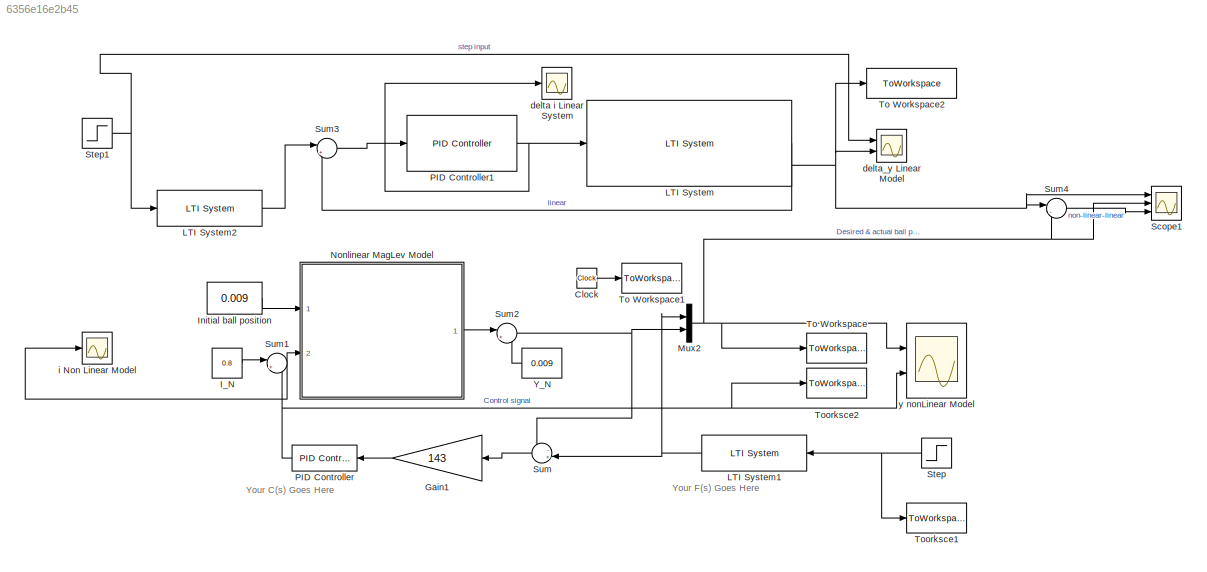
MODEL slx_6356e16e2b45
KIND model
CONFIG AbsTol = auto
CONFIG EnableMultiTasking = off
CONFIG FixedStep = auto
CONFIG MaxStep = auto
CONFIG MinStep = auto
CONFIG RelTol = 1e-3
CONFIG SampleTimeConstraint = Unconstrained
CONFIG Solver = VariableStepAuto
CONFIG SolverName = VariableStepAuto
CONFIG StartTime = 0.0
CONFIG StopTime = 15.0
BLOCK [Scope]  i Non Linear Model
  Floating = off
  NumInputPorts = 1
  Ports = [1]
  ScopeSpecificationString = Simulink.scopes.TimeScopeBlockCfg('CurrentConfiguration', extmgr.ConfigurationSet(extmgr.Configuration('Core','General UI',true),extmgr.Configuration('Core','Source UI',true),extmgr.Configuration('Sources','WiredSimulink',true,'DataLoggingVariableName','ScopeData1'),extmgr.Configuration('Visuals','Time Domain',true,'SerializedDisplays',{struct('MinYLimReal','0.7067','MaxYLimReal','1.02413','YLabel...<+1383ch>
BLOCK [Scope]  y nonLinear Model
  Floating = off
  NumInputPorts = 2
  Ports = [2]
  ScopeSpecificationString = Simulink.scopes.TimeScopeBlockCfg('CurrentConfiguration', extmgr.ConfigurationSet(extmgr.Configuration('Core','General UI',true),extmgr.Configuration('Core','Source UI',true),extmgr.Configuration('Sources','WiredSimulink',true,'DataLoggingSaveFormat','StructureWithTime','DataLoggingMaxPoints','500000','DataLoggingLimitDataPoints',true,'DataLoggingDecimation','1','DataLoggingDecimateData',true),ext...<+2455ch>
BLOCK [Clock] Clock
BLOCK [Gain] Gain1
  Gain = 143
  OutDataTypeStr = Inherit: Inherit via internal rule
  ParamDataTypeStr = Inherit: Inherit via internal rule
  SaturateOnIntegerOverflow = off
BLOCK [Constant] I_N
  Value = 0.8
BLOCK [Constant] Initial ball position
  Value = 0.009
BLOCK [Reference] LTI System  REF=cstblocks/LTI System
  Ports = [1, 1]
  SourceBlock = cstblocks/LTI System
  SourceProductBaseCode = CT
  SourceProductName = Control System Toolbox
  SourceType = LTI Block
BLOCK [Reference] LTI System1  REF=cstblocks/LTI System
  Ports = [1, 1]
  SourceBlock = cstblocks/LTI System
  SourceProductBaseCode = CT
  SourceProductName = Control System Toolbox
  SourceType = LTI Block
BLOCK [Reference] LTI System2  REF=cstblocks/LTI System
  Ports = [1, 1]
  SourceBlock = cstblocks/LTI System
  SourceProductBaseCode = CT
  SourceProductName = Control System Toolbox
  SourceType = LTI Block
BLOCK [Mux] Mux2
  DisplayOption = bar
  Inputs = 2
  Ports = [2, 1]
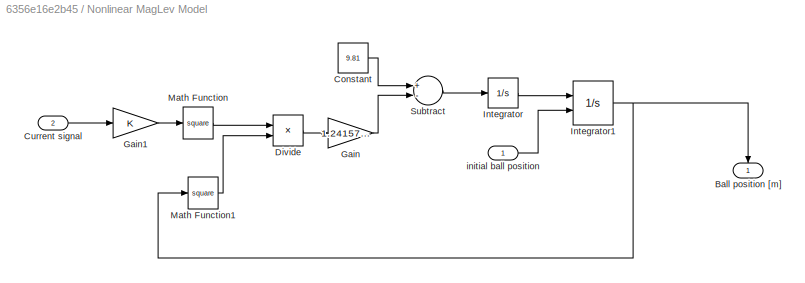
BLOCK [SubSystem] Nonlinear MagLev Model
  Ports = [2, 1]
  RequestExecContextInheritance = off
BLOCK [Outport] Nonlinear MagLev Model/Ball position [m]
  IconDisplay = Port number
BLOCK [Constant] Nonlinear MagLev Model/Constant
  Value = 9.81
BLOCK [Inport] Nonlinear MagLev Model/Current signal
  IconDisplay = Port number
  Port = 2
BLOCK [Product] Nonlinear MagLev Model/Divide
  InputSameDT = off
  Inputs = */
  OutDataTypeStr = Inherit: Inherit via internal rule
  Ports = [2, 1]
  RndMeth = Floor
  SaturateOnIntegerOverflow = off
BLOCK [Gain] Nonlinear MagLev Model/Gain
  Gain = 1.241578125e-3
  OutDataTypeStr = Inherit: Inherit via internal rule
  ParamDataTypeStr = Inherit: Inherit via internal rule
  SaturateOnIntegerOverflow = off
BLOCK [Gain] Nonlinear MagLev Model/Gain1
  OutDataTypeStr = Inherit: Inherit via internal rule
  ParamDataTypeStr = Inherit: Inherit via internal rule
  SaturateOnIntegerOverflow = off
BLOCK [Integrator] Nonlinear MagLev Model/Integrator
  Ports = [1, 1]
BLOCK [Integrator] Nonlinear MagLev Model/Integrator1
  InitialConditionSource = external
  Ports = [2, 1]
BLOCK [Math] Nonlinear MagLev Model/Math Function
  Operator = square
  Ports = [1, 1]
BLOCK [Math] Nonlinear MagLev Model/Math Function1
  Operator = square
  Ports = [1, 1]
BLOCK [Sum] Nonlinear MagLev Model/Subtract
  InputSameDT = off
  Inputs = +-
  OutDataTypeStr = Inherit: Inherit via internal rule
  Ports = [2, 1]
  SaturateOnIntegerOverflow = off
BLOCK [Inport] Nonlinear MagLev Model/initial ball position
  IconDisplay = Port number
BLOCK [Reference] PID Controller  REF=simulink/Continuous/PID Controller
  Ports = [1, 1]
  SourceBlock = simulink/Continuous/PID Controller
  SourceProductBaseCode = SL
  SourceProductName = Simulink
  SourceType = PID 1dof
BLOCK [Reference] PID Controller1  REF=simulink/Continuous/PID Controller
  Ports = [1, 1]
  SourceBlock = simulink/Continuous/PID Controller
  SourceProductBaseCode = SL
  SourceProductName = Simulink
  SourceType = PID 1dof
BLOCK [Scope] Scope1
  Floating = off
  NumInputPorts = 3
  Ports = [3]
  ScopeSpecificationString = Simulink.scopes.TimeScopeBlockCfg('CurrentConfiguration', extmgr.ConfigurationSet(extmgr.Configuration('Core','General UI',true),extmgr.Configuration('Core','Source UI',true),extmgr.Configuration('Sources','WiredSimulink',true,'DataLoggingVariableName','ScopeData2'),extmgr.Configuration('Visuals','Time Domain',true,'SerializedDisplays',{struct('MinYLimReal','-0.00053','MaxYLimReal','0.00247','YLab...<+1652ch>
BLOCK [Step] Step
  After = 0.002
  SampleTime = 0
  Time = 0
BLOCK [Step] Step1
  After = 0.002
  SampleTime = 0
  Time = 0
BLOCK [Sum] Sum
  IconShape = round
  InputSameDT = off
  Inputs = -+|
  OutDataTypeStr = Inherit: Inherit via internal rule
  Ports = [2, 1]
  SaturateOnIntegerOverflow = off
BLOCK [Sum] Sum1
  IconShape = round
  InputSameDT = off
  Inputs = |++
  OutDataTypeStr = Inherit: Inherit via internal rule
  Ports = [2, 1]
  SaturateOnIntegerOverflow = off
BLOCK [Sum] Sum2
  IconShape = round
  InputSameDT = off
  Inputs = |+-
  OutDataTypeStr = Inherit: Inherit via internal rule
  Ports = [2, 1]
  SaturateOnIntegerOverflow = off
BLOCK [Sum] Sum3
  IconShape = round
  InputSameDT = off
  Inputs = |+-
  OutDataTypeStr = Inherit: Inherit via internal rule
  Ports = [2, 1]
  SaturateOnIntegerOverflow = off
BLOCK [Sum] Sum4
  IconShape = round
  InputSameDT = off
  Inputs = |-+
  OutDataTypeStr = Inherit: Inherit via internal rule
  Ports = [2, 1]
  SaturateOnIntegerOverflow = off
BLOCK [ToWorkspace] To Workspace
  MaxDataPoints = inf
  Ports = [1]
  SampleTime = 0.01
  VariableName = y
BLOCK [ToWorkspace] To Workspace1
  MaxDataPoints = inf
  Ports = [1]
  SampleTime = 0.01
  VariableName = time
BLOCK [ToWorkspace] To Workspace2
  FixptAsFi = on
  MaxDataPoints = inf
  Ports = [1]
  SampleTime = -1
  VariableName = prePID
BLOCK [ToWorkspace] Toorksce1
  MaxDataPoints = inf
  Ports = [1]
  SampleTime = 0.01
  VariableName = r
BLOCK [ToWorkspace] Toorksce2
  MaxDataPoints = inf
  Ports = [1]
  SampleTime = 0.01
  VariableName = u
BLOCK [Constant] Y_N
  Value = 0.009
BLOCK [Scope] delta i Linear System
  Floating = off
  NumInputPorts = 1
  Ports = [1]
  ScopeSpecificationString = Simulink.scopes.TimeScopeBlockCfg('CurrentConfiguration', extmgr.ConfigurationSet(extmgr.Configuration('Core','General UI',true),extmgr.Configuration('Core','Source UI',true),extmgr.Configuration('Sources','WiredSimulink',true,'DataLoggingVariableName','ScopeData3'),extmgr.Configuration('Visuals','Time Domain',true,'SerializedDisplays',{struct('MinYLimReal','-0.00065','MaxYLimReal','0.00159','YLab...<+1400ch>
BLOCK [Scope] delta_y Linear Model
  Floating = off
  NumInputPorts = 2
  Ports = [2]
  ScopeSpecificationString = Simulink.scopes.TimeScopeBlockCfg('CurrentConfiguration', extmgr.ConfigurationSet(extmgr.Configuration('Core','General UI',true),extmgr.Configuration('Core','Source UI',true),extmgr.Configuration('Sources','WiredSimulink',true,'DataLoggingVariableName','ScopeData1'),extmgr.Configuration('Visuals','Time Domain',true,'SerializedDisplays',{struct('MinYLimReal','-0.00027','MaxYLimReal','0.00244','YLab...<+1480ch>
ANNOTATION (root): Your C(s) Goes Here
ANNOTATION (root): Your F(s) Goes Here
LINE Clock:1 -> To Workspace1:1
LINE Gain1:1 -> PID Controller:1
LINE I_N:1 -> Sum1:1
LINE Initial ball position:1 -> Nonlinear MagLev Model:1
NET LTI System1:1 -> Mux2:1, Sum:2
LINE LTI System2:1 -> Sum3:1
NET LTI System:1 -> Scope1:1, Sum3:2, Sum4:1, To Workspace2:1, delta_y Linear Model:2
NET Mux2:1 ->  y nonLinear Model:1, Scope1:2, Sum4:2, To Workspace:1
LINE Nonlinear MagLev Model/Constant:1 -> Nonlinear MagLev Model/Subtract:1
LINE Nonlinear MagLev Model/Current signal:1 -> Nonlinear MagLev Model/Gain1:1
LINE Nonlinear MagLev Model/Divide:1 -> Nonlinear MagLev Model/Gain:1
LINE Nonlinear MagLev Model/Gain1:1 -> Nonlinear MagLev Model/Math Function:1
LINE Nonlinear MagLev Model/Gain:1 -> Nonlinear MagLev Model/Subtract:2
NET Nonlinear MagLev Model/Integrator1:1 -> Nonlinear MagLev Model/Ball position [m]:1, Nonlinear MagLev Model/Math Function1:1
LINE Nonlinear MagLev Model/Integrator:1 -> Nonlinear MagLev Model/Integrator1:1
LINE Nonlinear MagLev Model/Math Function1:1 -> Nonlinear MagLev Model/Divide:2
LINE Nonlinear MagLev Model/Math Function:1 -> Nonlinear MagLev Model/Divide:1
LINE Nonlinear MagLev Model/Subtract:1 -> Nonlinear MagLev Model/Integrator:1
LINE Nonlinear MagLev Model/initial ball position:1 -> Nonlinear MagLev Model/Integrator1:2
LINE Nonlinear MagLev Model:1 -> Sum2:1
NET PID Controller1:1 -> LTI System:1, delta i Linear System:1
NET PID Controller:1 ->  y nonLinear Model:2, Sum1:2, Toorksce2:1
NET Step1:1 -> LTI System2:1, delta_y Linear Model:1
NET Step:1 -> LTI System1:1, Toorksce1:1
NET Sum1:1 ->  i Non Linear Model:1, Nonlinear MagLev Model:2
NET Sum2:1 -> Mux2:2, Sum:1
LINE Sum3:1 -> PID Controller1:1
LINE Sum4:1 -> Scope1:3
LINE Sum:1 -> Gain1:1
LINE Y_N:1 -> Sum2:2
note: NET lines group one-source signal fan-out (src -> all destinations, sorted); 1:1 wires keep LINE
